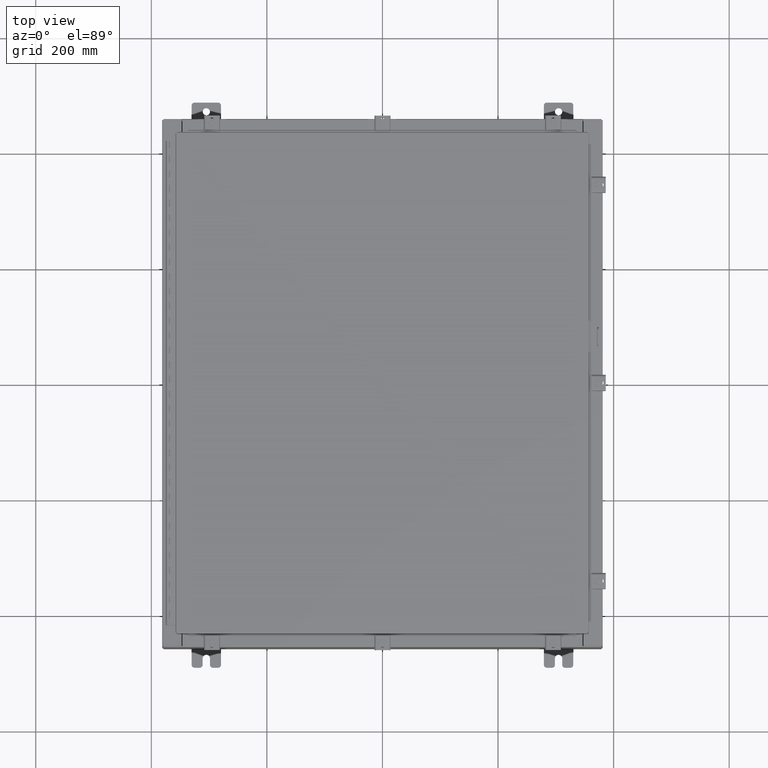
[diagram: clean part render]
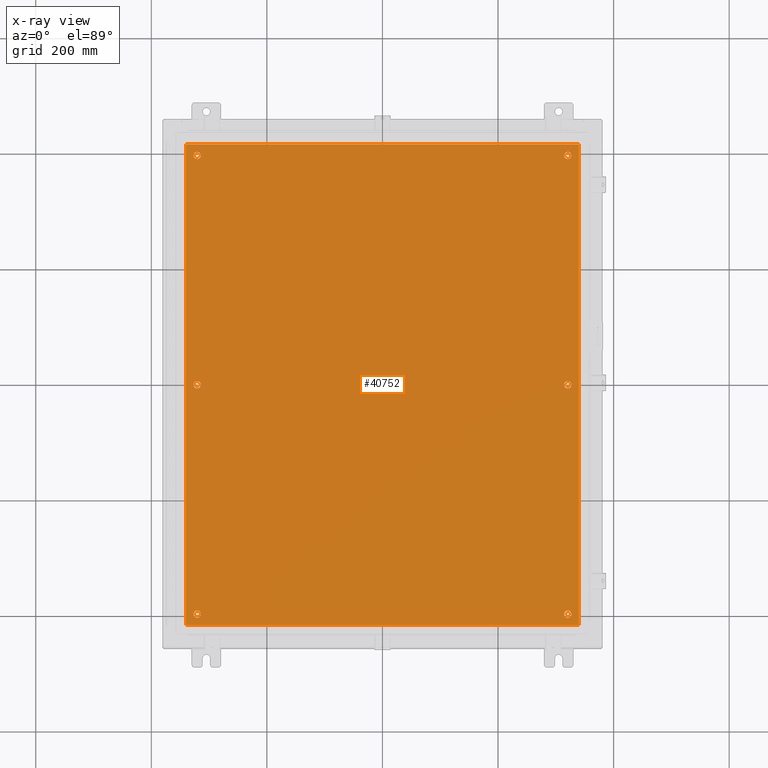
[diagram: x-ray — body ghosted, one internal face saturated and labeled with its STEP entity id]
A machine part, top view, then the same camera in x-ray: the body is ghosted and one INTERNAL B-rep face — a face not visible from any outside direction — is saturated and labeled: STEP entity #40752.
In plain terms, the highlighted planar face has unit normal (0, 0, -1).
Its self-contained STEP definition (entity closure, byte-faithful):
#73 = EDGE_LOOP ( 'NONE', ( #38490, #23561, #386, #1418 ) ) ;
#93 = EDGE_LOOP ( 'NONE', ( #18528, #12167 ) ) ;
#122 = EDGE_CURVE ( 'NONE', #13853, #30124, #39386, .T. ) ;
#157 = CARTESIAN_POINT ( 'NONE',  ( 13.38299999999999900, -16.38300000000000300, -0.1040000000000009100 ) ) ;
#386 = ORIENTED_EDGE ( 'NONE', *, *, #10556, .F. ) ;
#943 = DIRECTION ( 'NONE',  ( -0.0000000000000000000, -0.0000000000000000000, 1.000000000000000000 ) ) ;
#987 = CARTESIAN_POINT ( 'NONE',  ( -12.37500000000000200, 2.628543122537475400E-016, -0.1039999999999999800 ) ) ;
#1418 = ORIENTED_EDGE ( 'NONE', *, *, #9820, .F. ) ;
#1741 = DIRECTION ( 'NONE',  ( -0.0000000000000000000, -0.0000000000000000000, 1.000000000000000000 ) ) ;
#1767 = CIRCLE ( 'NONE', #26915, 0.2500000000000008900 ) ;
#2046 = AXIS2_PLACEMENT_3D ( 'NONE', #20859, #943, #24226 ) ;
#2093 = CARTESIAN_POINT ( 'NONE',  ( 12.62500000000000400, -15.62500000000000400, -0.1039999999999999800 ) ) ;
#2196 = CIRCLE ( 'NONE', #42884, 0.2500000000000008900 ) ;
#2488 = VERTEX_POINT ( 'NONE', #157 ) ;
#2596 = CARTESIAN_POINT ( 'NONE',  ( 13.50000000000000000, 16.38299999999999900, -0.1040000000000009100 ) ) ;
#2872 = CIRCLE ( 'NONE', #6942, 0.2500000000000008900 ) ;
#3299 = EDGE_CURVE ( 'NONE', #35111, #3306, #20788, .T. ) ;
#3306 = VERTEX_POINT ( 'NONE', #16458 ) ;
#3368 = CARTESIAN_POINT ( 'NONE',  ( 12.37500000000000400, -15.62500000000000400, -0.1039999999999999800 ) ) ;
#3636 = EDGE_CURVE ( 'NONE', #20985, #42913, #35963, .T. ) ;
#3842 = FACE_BOUND ( 'NONE', #93, .T. ) ;
#4388 = AXIS2_PLACEMENT_3D ( 'NONE', #26774, #6829, #30171 ) ;
#4696 = VERTEX_POINT ( 'NONE', #28242 ) ;
#4784 = EDGE_CURVE ( 'NONE', #40570, #18067, #12911, .T. ) ;
#4875 = AXIS2_PLACEMENT_3D ( 'NONE', #28762, #8813, #32140 ) ;
#5407 = DIRECTION ( 'NONE',  ( -1.000000000000000000, 0.0000000000000000000, 0.0000000000000000000 ) ) ;
#6341 = EDGE_LOOP ( 'NONE', ( #6655, #35884 ) ) ;
#6601 = CARTESIAN_POINT ( 'NONE',  ( 12.62500000000000200, 3.355087480100814800E-015, -0.1039999999999999800 ) ) ;
#6648 = EDGE_CURVE ( 'NONE', #42913, #2488, #11238, .T. ) ;
#6655 = ORIENTED_EDGE ( 'NONE', *, *, #4784, .T. ) ;
#6712 = EDGE_LOOP ( 'NONE', ( #19254, #19749 ) ) ;
#6829 = DIRECTION ( 'NONE',  ( -0.0000000000000000000, -0.0000000000000000000, 1.000000000000000000 ) ) ;
#6942 = AXIS2_PLACEMENT_3D ( 'NONE', #38402, #18341, #41764 ) ;
#7407 = EDGE_CURVE ( 'NONE', #24625, #31025, #2872, .T. ) ;
#7441 = DIRECTION ( 'NONE',  ( -0.0000000000000000000, -0.0000000000000000000, 1.000000000000000000 ) ) ;
#8502 = EDGE_LOOP ( 'NONE', ( #37747, #22513 ) ) ;
#8683 = CARTESIAN_POINT ( 'NONE',  ( 0.0000000000000000000, 0.0000000000000000000, -0.1039999999999999800 ) ) ;
#8695 = CARTESIAN_POINT ( 'NONE',  ( 12.62500000000000400, 15.62500000000000400, -0.1039999999999999800 ) ) ;
#8813 = DIRECTION ( 'NONE',  ( -0.0000000000000000000, -0.0000000000000000000, 1.000000000000000000 ) ) ;
#9377 = DIRECTION ( 'NONE',  ( 1.000000000000000000, -0.0000000000000000000, -0.0000000000000000000 ) ) ;
#9534 = AXIS2_PLACEMENT_3D ( 'NONE', #35425, #15348, #38785 ) ;
#9820 = EDGE_CURVE ( 'NONE', #2488, #27980, #37133, .T. ) ;
#9937 = DIRECTION ( 'NONE',  ( -1.000000000000000000, 0.0000000000000000000, 0.0000000000000000000 ) ) ;
#10556 = EDGE_CURVE ( 'NONE', #27980, #20985, #24490, .T. ) ;
#11006 = DIRECTION ( 'NONE',  ( -0.0000000000000000000, -0.0000000000000000000, 1.000000000000000000 ) ) ;
#11238 = LINE ( 'NONE', #32720, #20082 ) ;
#11637 = FACE_OUTER_BOUND ( 'NONE', #73, .T. ) ;
#11943 = AXIS2_PLACEMENT_3D ( 'NONE', #8695, #32019, #12004 ) ;
#11997 = DIRECTION ( 'NONE',  ( 0.0000000000000000000, 0.0000000000000000000, -1.000000000000000000 ) ) ;
#12004 = DIRECTION ( 'NONE',  ( -1.000000000000000000, 0.0000000000000000000, 0.0000000000000000000 ) ) ;
#12167 = ORIENTED_EDGE ( 'NONE', *, *, #41402, .T. ) ;
#12322 = EDGE_CURVE ( 'NONE', #31025, #24625, #1767, .T. ) ;
#12681 = CARTESIAN_POINT ( 'NONE',  ( -12.37500000000000400, -15.62500000000000400, -0.1039999999999999800 ) ) ;
#12911 = CIRCLE ( 'NONE', #9534, 0.2500000000000008900 ) ;
#13137 = CIRCLE ( 'NONE', #42317, 0.2500000000000008900 ) ;
#13153 = VERTEX_POINT ( 'NONE', #3368 ) ;
#13426 = CARTESIAN_POINT ( 'NONE',  ( 13.38299999999999900, -16.38300000000000300, -0.1040000000000009100 ) ) ;
#13669 = CIRCLE ( 'NONE', #2046, 0.2500000000000008900 ) ;
#13853 = VERTEX_POINT ( 'NONE', #40379 ) ;
#14084 = CARTESIAN_POINT ( 'NONE',  ( 12.62500000000000400, -15.62500000000000400, -0.1039999999999999800 ) ) ;
#14976 = DIRECTION ( 'NONE',  ( 0.0000000000000000000, -1.000000000000000000, 0.0000000000000000000 ) ) ;
#15067 = CARTESIAN_POINT ( 'NONE',  ( -13.38300000000000300, 16.38299999999998800, -0.1040000000000063800 ) ) ;
#15166 = CIRCLE ( 'NONE', #15954, 0.2500000000000008900 ) ;
#15348 = DIRECTION ( 'NONE',  ( -0.0000000000000000000, -0.0000000000000000000, 1.000000000000000000 ) ) ;
#15954 = AXIS2_PLACEMENT_3D ( 'NONE', #14084, #37513, #17435 ) ;
#16233 = EDGE_LOOP ( 'NONE', ( #42981, #28561 ) ) ;
#16458 = CARTESIAN_POINT ( 'NONE',  ( 12.37500000000000200, 3.385703650079498500E-015, -0.1039999999999999800 ) ) ;
#17435 = DIRECTION ( 'NONE',  ( -1.000000000000000000, 0.0000000000000000000, 0.0000000000000000000 ) ) ;
#17907 = CARTESIAN_POINT ( 'NONE',  ( -12.87500000000000500, 15.62500000000000400, -0.1039999999999999800 ) ) ;
#18067 = VERTEX_POINT ( 'NONE', #29074 ) ;
#18132 = VECTOR ( 'NONE', #14976, 39.37007874015748100 ) ;
#18250 = VECTOR ( 'NONE', #33447, 39.37007874015748100 ) ;
#18341 = DIRECTION ( 'NONE',  ( -0.0000000000000000000, -0.0000000000000000000, 1.000000000000000000 ) ) ;
#18528 = ORIENTED_EDGE ( 'NONE', *, *, #41818, .T. ) ;
#19254 = ORIENTED_EDGE ( 'NONE', *, *, #41997, .T. ) ;
#19749 = ORIENTED_EDGE ( 'NONE', *, *, #122, .T. ) ;
#20082 = VECTOR ( 'NONE', #9377, 39.37007874015748100 ) ;
#20485 = CARTESIAN_POINT ( 'NONE',  ( -13.38300000000000300, -16.38299999999999900, -0.1040000000000020100 ) ) ;
#20491 = FACE_BOUND ( 'NONE', #30720, .T. ) ;
#20788 = CIRCLE ( 'NONE', #30188, 0.2500000000000008900 ) ;
#20859 = CARTESIAN_POINT ( 'NONE',  ( 12.62500000000000400, 15.62500000000000400, -0.1039999999999999800 ) ) ;
#20985 = VERTEX_POINT ( 'NONE', #15067 ) ;
#21019 = VERTEX_POINT ( 'NONE', #35270 ) ;
#21548 = FACE_BOUND ( 'NONE', #6712, .T. ) ;
#21662 = CARTESIAN_POINT ( 'NONE',  ( -12.62500000000000400, -15.62500000000000400, -0.1039999999999999800 ) ) ;
#22504 = CIRCLE ( 'NONE', #4875, 0.2500000000000008900 ) ;
#22513 = ORIENTED_EDGE ( 'NONE', *, *, #41184, .T. ) ;
#23561 = ORIENTED_EDGE ( 'NONE', *, *, #3636, .F. ) ;
#24226 = DIRECTION ( 'NONE',  ( -1.000000000000000000, 0.0000000000000000000, 0.0000000000000000000 ) ) ;
#24490 = LINE ( 'NONE', #2596, #41234 ) ;
#24625 = VERTEX_POINT ( 'NONE', #29368 ) ;
#25045 = DIRECTION ( 'NONE',  ( -1.000000000000000000, 0.0000000000000000000, 0.0000000000000000000 ) ) ;
#25071 = CARTESIAN_POINT ( 'NONE',  ( -13.38300000000000300, 16.38299999999998800, -0.1040000000000063800 ) ) ;
#25392 = DIRECTION ( 'NONE',  ( -0.0000000000000000000, -0.0000000000000000000, 1.000000000000000000 ) ) ;
#25821 = ORIENTED_EDGE ( 'NONE', *, *, #12322, .T. ) ;
#25888 = DIRECTION ( 'NONE',  ( -1.000000000000000000, -0.0000000000000000000, -0.0000000000000000000 ) ) ;
#26186 = CARTESIAN_POINT ( 'NONE',  ( 12.87500000000000400, 3.355087480100814800E-015, -0.1039999999999999800 ) ) ;
#26375 = CIRCLE ( 'NONE', #30693, 0.2500000000000008900 ) ;
#26695 = ORIENTED_EDGE ( 'NONE', *, *, #7407, .T. ) ;
#26774 = CARTESIAN_POINT ( 'NONE',  ( -12.62500000000000400, -15.62500000000000400, -0.1039999999999999800 ) ) ;
#26915 = AXIS2_PLACEMENT_3D ( 'NONE', #27396, #7441, #30770 ) ;
#27396 = CARTESIAN_POINT ( 'NONE',  ( -12.62500000000000400, 15.62500000000000400, -0.1039999999999999800 ) ) ;
#27617 = CARTESIAN_POINT ( 'NONE',  ( 13.38299999999999900, 16.38300000000000300, -0.1040000000000009100 ) ) ;
#27980 = VERTEX_POINT ( 'NONE', #27617 ) ;
#28242 = CARTESIAN_POINT ( 'NONE',  ( 12.37500000000000400, 15.62500000000000400, -0.1039999999999999800 ) ) ;
#28561 = ORIENTED_EDGE ( 'NONE', *, *, #29981, .T. ) ;
#28647 = PLANE ( 'NONE',  #41724 ) ;
#28762 = CARTESIAN_POINT ( 'NONE',  ( 12.62500000000000200, 3.355087480100814800E-015, -0.1039999999999999800 ) ) ;
#29074 = CARTESIAN_POINT ( 'NONE',  ( -12.87500000000000400, 2.934704822324311800E-016, -0.1039999999999999800 ) ) ;
#29368 = CARTESIAN_POINT ( 'NONE',  ( -12.37500000000000400, 15.62500000000000400, -0.1039999999999999800 ) ) ;
#29402 = FACE_BOUND ( 'NONE', #8502, .T. ) ;
#29919 = DIRECTION ( 'NONE',  ( -0.0000000000000000000, -0.0000000000000000000, 1.000000000000000000 ) ) ;
#29981 = EDGE_CURVE ( 'NONE', #3306, #35111, #22504, .T. ) ;
#30124 = VERTEX_POINT ( 'NONE', #12681 ) ;
#30171 = DIRECTION ( 'NONE',  ( -1.000000000000000000, 0.0000000000000000000, 0.0000000000000000000 ) ) ;
#30188 = AXIS2_PLACEMENT_3D ( 'NONE', #6601, #29919, #9937 ) ;
#30448 = FACE_BOUND ( 'NONE', #6341, .T. ) ;
#30693 = AXIS2_PLACEMENT_3D ( 'NONE', #31013, #11006, #34401 ) ;
#30720 = EDGE_LOOP ( 'NONE', ( #26695, #25821 ) ) ;
#30770 = DIRECTION ( 'NONE',  ( -1.000000000000000000, 0.0000000000000000000, 0.0000000000000000000 ) ) ;
#31013 = CARTESIAN_POINT ( 'NONE',  ( -12.62500000000000200, 2.628543122537475400E-016, -0.1039999999999999800 ) ) ;
#31025 = VERTEX_POINT ( 'NONE', #17907 ) ;
#32019 = DIRECTION ( 'NONE',  ( -0.0000000000000000000, -0.0000000000000000000, 1.000000000000000000 ) ) ;
#32140 = DIRECTION ( 'NONE',  ( -1.000000000000000000, 0.0000000000000000000, 0.0000000000000000000 ) ) ;
#32720 = CARTESIAN_POINT ( 'NONE',  ( -13.50000000000000000, -16.38299999999999900, -0.1040000000000020100 ) ) ;
#33447 = DIRECTION ( 'NONE',  ( 0.0000000000000000000, 1.000000000000000000, 0.0000000000000000000 ) ) ;
#33789 = VERTEX_POINT ( 'NONE', #35967 ) ;
#34401 = DIRECTION ( 'NONE',  ( -1.000000000000000000, 0.0000000000000000000, 0.0000000000000000000 ) ) ;
#35111 = VERTEX_POINT ( 'NONE', #26186 ) ;
#35270 = CARTESIAN_POINT ( 'NONE',  ( 12.87500000000000500, 15.62500000000000400, -0.1039999999999999800 ) ) ;
#35402 = DIRECTION ( 'NONE',  ( -1.000000000000000000, 0.0000000000000000000, -0.0000000000000000000 ) ) ;
#35425 = CARTESIAN_POINT ( 'NONE',  ( -12.62500000000000200, 2.628543122537475400E-016, -0.1039999999999999800 ) ) ;
#35784 = CIRCLE ( 'NONE', #11943, 0.2500000000000008900 ) ;
#35884 = ORIENTED_EDGE ( 'NONE', *, *, #38626, .T. ) ;
#35963 = LINE ( 'NONE', #25071, #18132 ) ;
#35967 = CARTESIAN_POINT ( 'NONE',  ( 12.87500000000000500, -15.62500000000000400, -0.1039999999999999800 ) ) ;
#37133 = LINE ( 'NONE', #13426, #18250 ) ;
#37513 = DIRECTION ( 'NONE',  ( -0.0000000000000000000, -0.0000000000000000000, 1.000000000000000000 ) ) ;
#37747 = ORIENTED_EDGE ( 'NONE', *, *, #38828, .T. ) ;
#38310 = FACE_BOUND ( 'NONE', #16233, .T. ) ;
#38402 = CARTESIAN_POINT ( 'NONE',  ( -12.62500000000000400, 15.62500000000000400, -0.1039999999999999800 ) ) ;
#38490 = ORIENTED_EDGE ( 'NONE', *, *, #6648, .F. ) ;
#38626 = EDGE_CURVE ( 'NONE', #18067, #40570, #26375, .T. ) ;
#38785 = DIRECTION ( 'NONE',  ( -1.000000000000000000, 0.0000000000000000000, 0.0000000000000000000 ) ) ;
#38828 = EDGE_CURVE ( 'NONE', #21019, #4696, #35784, .T. ) ;
#39386 = CIRCLE ( 'NONE', #4388, 0.2500000000000008900 ) ;
#40379 = CARTESIAN_POINT ( 'NONE',  ( -12.87500000000000500, -15.62500000000000400, -0.1039999999999999800 ) ) ;
#40570 = VERTEX_POINT ( 'NONE', #987 ) ;
#40752 = ADVANCED_FACE ( 'NONE', ( #38310, #30448, #21548, #3842, #29402, #20491, #11637 ), #28647, .T. ) ;
#41184 = EDGE_CURVE ( 'NONE', #4696, #21019, #13669, .T. ) ;
#41234 = VECTOR ( 'NONE', #25888, 39.37007874015748100 ) ;
#41402 = EDGE_CURVE ( 'NONE', #13153, #33789, #13137, .T. ) ;
#41724 = AXIS2_PLACEMENT_3D ( 'NONE', #8683, #11997, #35402 ) ;
#41764 = DIRECTION ( 'NONE',  ( -1.000000000000000000, 0.0000000000000000000, 0.0000000000000000000 ) ) ;
#41818 = EDGE_CURVE ( 'NONE', #33789, #13153, #15166, .T. ) ;
#41997 = EDGE_CURVE ( 'NONE', #30124, #13853, #2196, .T. ) ;
#42317 = AXIS2_PLACEMENT_3D ( 'NONE', #2093, #25392, #5407 ) ;
#42884 = AXIS2_PLACEMENT_3D ( 'NONE', #21662, #1741, #25045 ) ;
#42913 = VERTEX_POINT ( 'NONE', #20485 ) ;
#42981 = ORIENTED_EDGE ( 'NONE', *, *, #3299, .T. ) ;